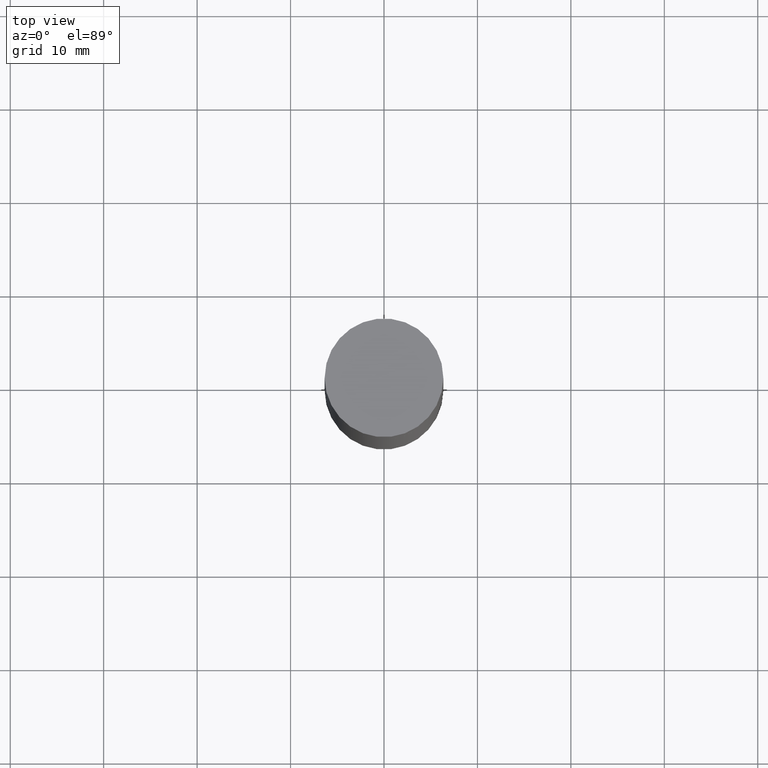
[diagram: clean part render]
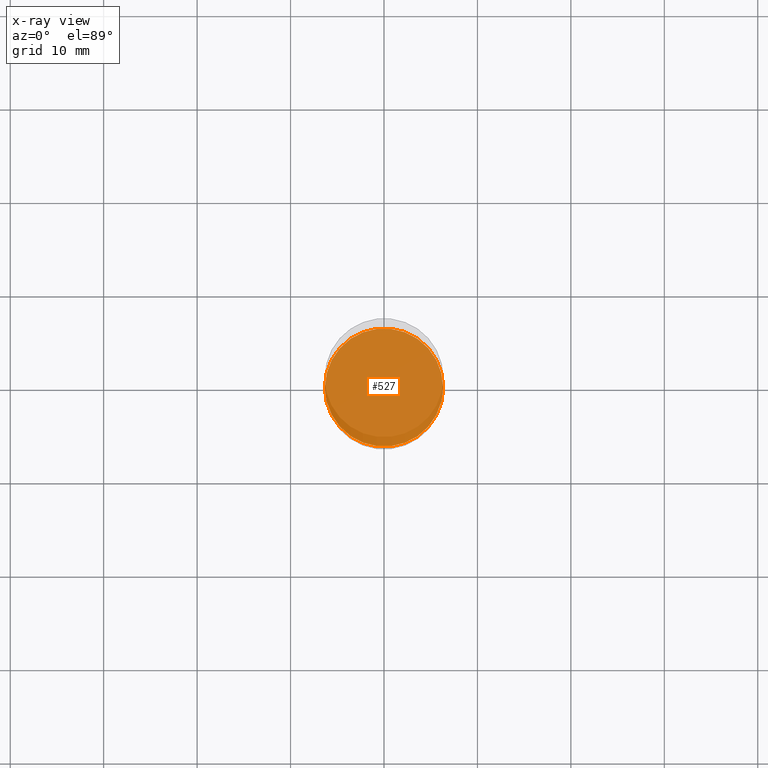
[diagram: x-ray — body ghosted, one internal face saturated and labeled with its STEP entity id]
A machine part, top view, then the same camera in x-ray: the body is ghosted and one INTERNAL B-rep face — a face not visible from any outside direction — is saturated and labeled: STEP entity #527.
In plain terms, the highlighted planar face has unit normal (-0, 0, 1).
Its self-contained STEP definition (entity closure, byte-faithful):
#32 = EDGE_CURVE ( 'NONE', #619, #345, #150, .T. ) ;
#63 = EDGE_LOOP ( 'NONE', ( #647, #236 ) ) ;
#128 = CARTESIAN_POINT ( 'NONE',  ( 5.807988414689700538E-29, -8.292268179752471696E-15, -2.375000000000000000 ) ) ;
#137 = DIRECTION ( 'NONE',  ( 1.000000000000000000, -6.982962677686269866E-15, 0.000000000000000000 ) ) ;
#150 = CIRCLE ( 'NONE', #578, 0.2489999999999999991 ) ;
#176 = CARTESIAN_POINT ( 'NONE',  ( -0.2489999999999999991, -6.517718313361599048E-15, -2.375000000000000000 ) ) ;
#181 = DIRECTION ( 'NONE',  ( 1.000000000000000000, -6.982962677686265922E-15, 4.876176775795935793E-29 ) ) ;
#182 = CIRCLE ( 'NONE', #652, 0.2489999999999999991 ) ;
#187 = CARTESIAN_POINT ( 'NONE',  ( 5.807988414689700538E-29, -8.292268179752471696E-15, -2.375000000000000000 ) ) ;
#236 = ORIENTED_EDGE ( 'NONE', *, *, #532, .F. ) ;
#292 = DIRECTION ( 'NONE',  ( -2.445468806185136597E-29, 3.491481338843145583E-15, 1.000000000000000000 ) ) ;
#345 = VERTEX_POINT ( 'NONE', #176 ) ;
#350 = DIRECTION ( 'NONE',  ( 1.000000000000000000, -6.982962677686269866E-15, 0.000000000000000000 ) ) ;
#398 = DIRECTION ( 'NONE',  ( -2.438088387897960049E-29, 3.491481338843145188E-15, 1.000000000000000000 ) ) ;
#451 = DIRECTION ( 'NONE',  ( -2.445468806185136597E-29, 3.491481338843145583E-15, 1.000000000000000000 ) ) ;
#454 = AXIS2_PLACEMENT_3D ( 'NONE', #128, #398, #181 ) ;
#491 = CARTESIAN_POINT ( 'NONE',  ( 0.2489999999999999991, -1.003102588649635236E-14, -2.375000000000000000 ) ) ;
#496 = PLANE ( 'NONE',  #454 ) ;
#527 = ADVANCED_FACE ( 'NONE', ( #649 ), #496, .F. ) ;
#532 = EDGE_CURVE ( 'NONE', #345, #619, #182, .T. ) ;
#551 = CARTESIAN_POINT ( 'NONE',  ( 5.807988414689700538E-29, -8.292268179752471696E-15, -2.375000000000000000 ) ) ;
#578 = AXIS2_PLACEMENT_3D ( 'NONE', #187, #292, #350 ) ;
#619 = VERTEX_POINT ( 'NONE', #491 ) ;
#647 = ORIENTED_EDGE ( 'NONE', *, *, #32, .F. ) ;
#649 = FACE_OUTER_BOUND ( 'NONE', #63, .T. ) ;
#652 = AXIS2_PLACEMENT_3D ( 'NONE', #551, #451, #137 ) ;